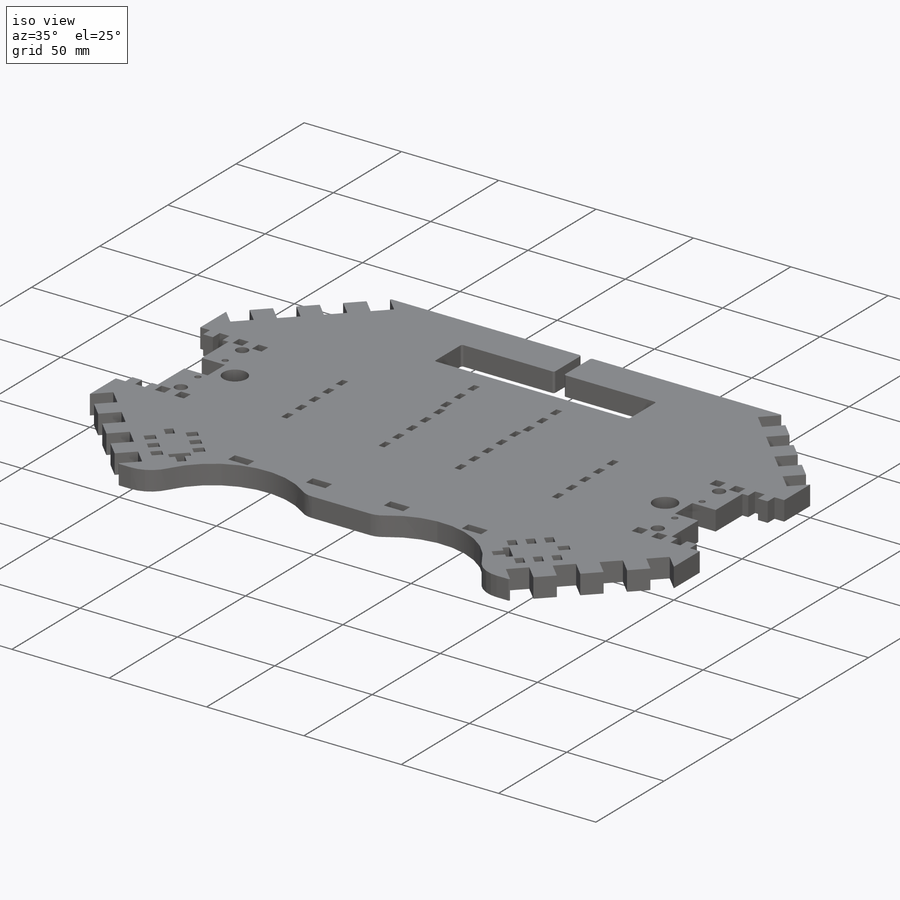
[diagram: iso view]
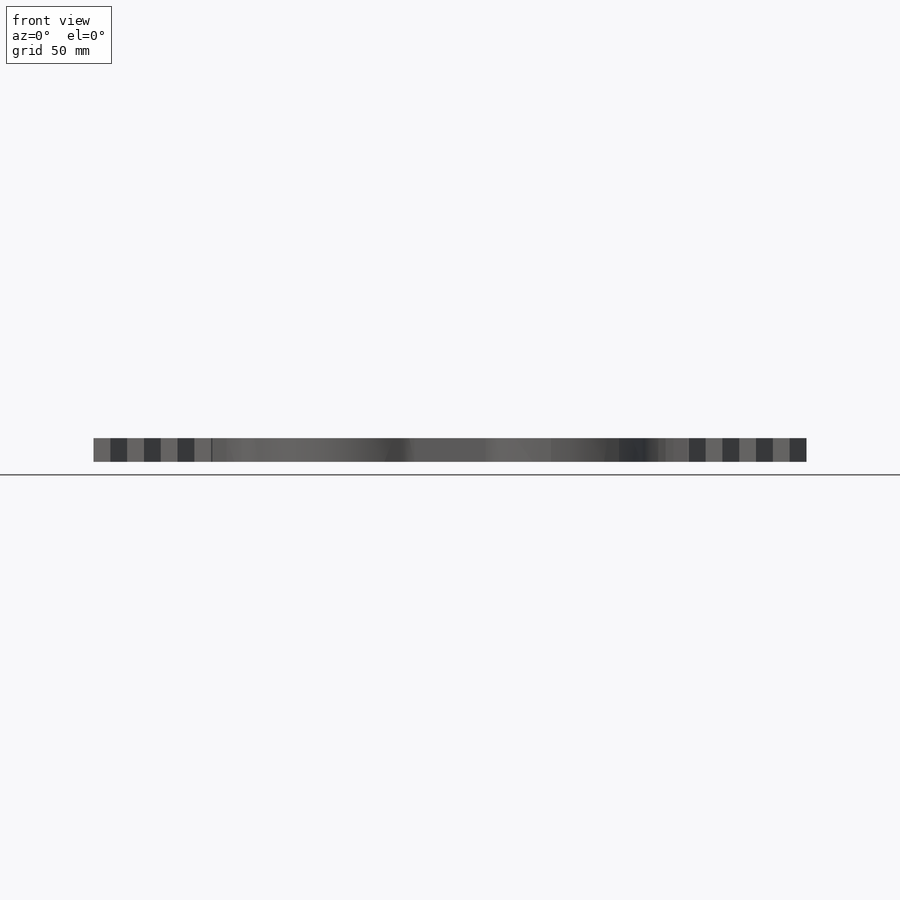
[diagram: front view]
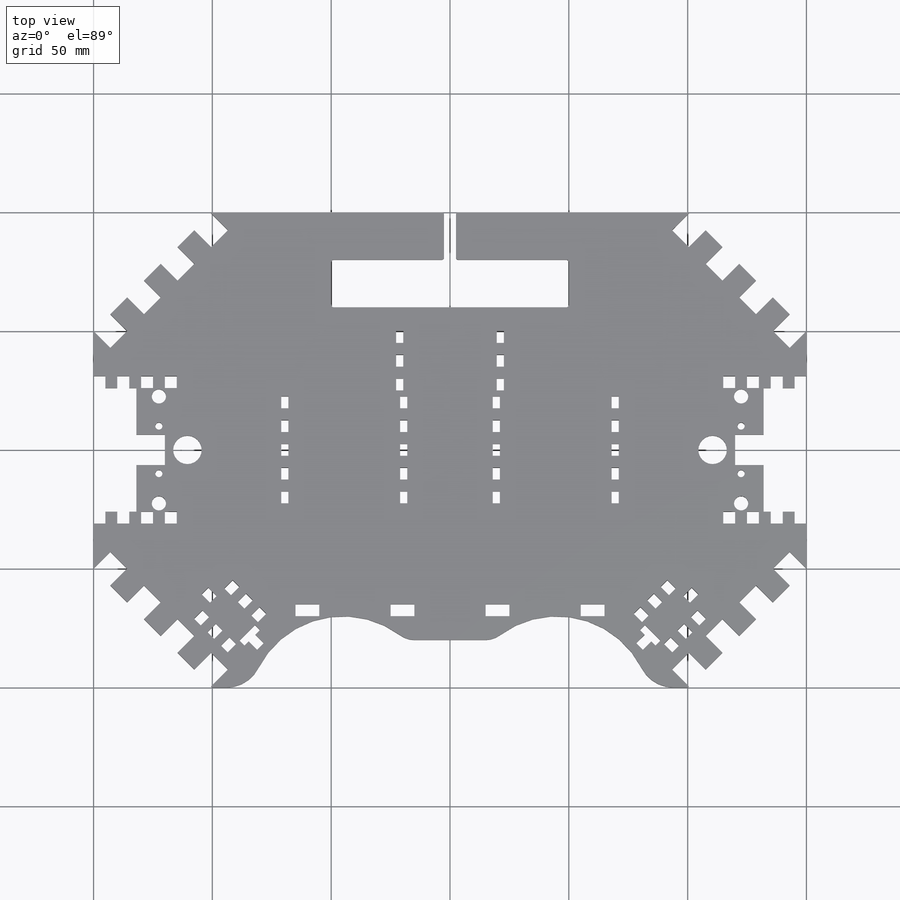
[diagram: top view]
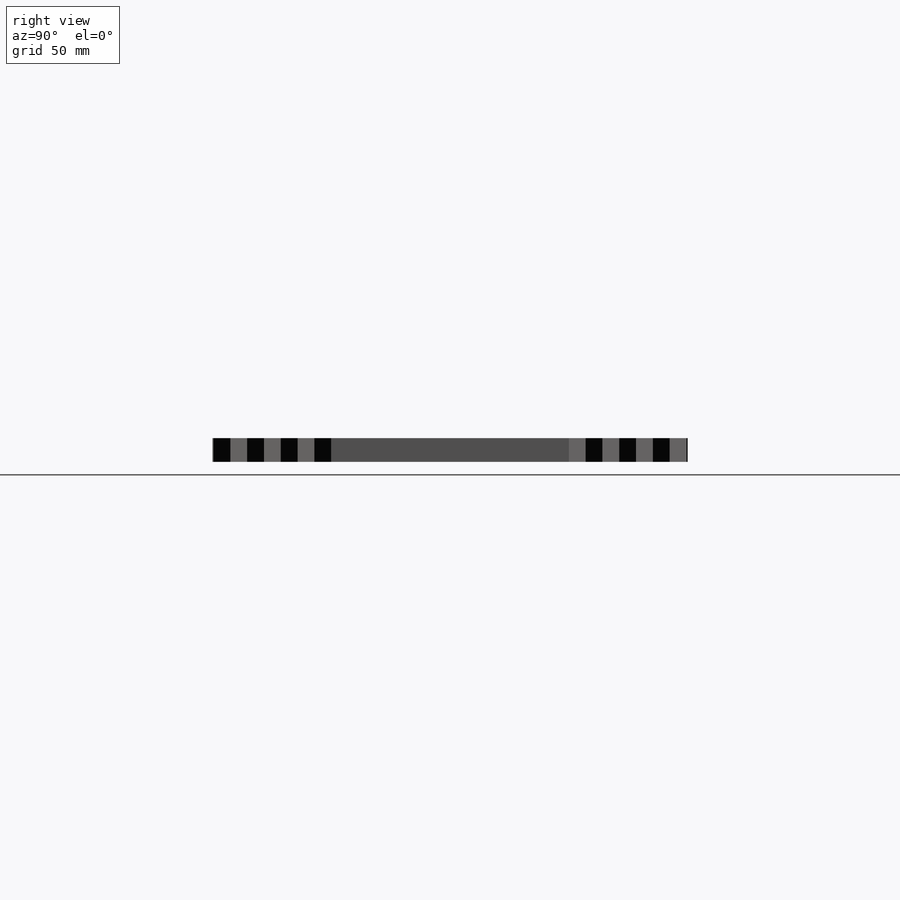
[diagram: right view]
SOLIDWORKS PART (.sldprt)
format: sldprt  version: not decoded by parser v0  size: 1,295,872 bytes
history: native  units: mm
features: sketch x17, cut_extrude x15, plane x3, pattern_linear x3, mirror x3, fillet x3, material x1, extrude x1 (+10 scaffold rows collapsed)
feature tree (56):
  scaffold x10  (default folders/planes/origin — collapsed)
  material  "Balsa"
  plane  "Plan de face"
  plane  "Plan de dessus"
  plane  "Plan de droite"
  sketch  "Esquisse1"  dims[D1=300.0mm D2=200.0mm D3=150.0mm D4=100.0mm]
  extrude  "Boss.-Extru.1"  Depth=10mm
  sketch  "Esquisse2"  dims[D1=50.0mm D2=50.0mm D3=50.0mm D4=50.0mm D5=50.0mm D6=50.0mm D7=50.0mm D8=50.0mm]
  cut_extrude  "Enlèv. mat.-Extru.1"  Depth=10mm
  sketch  "Esquisse3"  dims[D1=65.0mm 80=80.0mm D3=80.0mm D4=10.0mm D5=10.0mm D6=90.0mm D7=45.0mm D8=10.0mm D9=110.0mm]
  sketch  "Esquisse4"  dims[D1=5.0mm D2=3.0mm D3=18.0mm D4=17.5mm]
  cut_extrude  "Enlèv. mat.-Extru.3"  Depth=10mm
  pattern_linear  "Répétition linéaire1"  Count1=5 Count2=2 Spacing1=10mm Spacing2=50mm
  sketch  "Esquisse8"  dims[c1.D1=6.0mm c1.D2=6.0mm c1.D4=8.0mm c1.D6=8.0mm c1.D5=8.0mm c2.D6=8.0mm c2.D3=45.0mm c2.D4=45.0mm c3.D3=45.0mm c3.D4=22.5mm c3.D5=125.0mm c3.D6=125.0mm c4.D5=27.5mm c4.D6=27.5mm]
  cut_extrude  "Enlèv. mat.-Extru.6"  Depth=10mm
  sketch  "Esquisse14"  dims[c1.D1=12.0mm c1.D3=3.0mm c1.D4=3.0mm c1.D5=3.0mm c1.D6=3.0mm c1.D7=3.0mm c1.D8=3.0mm c1.D9=6.0mm c2.D6=6.0mm c2.D5=3.0mm c3.D6=3.0mm c3.D2=12.0mm c3.D5=30.0mm c4.D6=60.0mm c4.D7=0.0mm c4.D8=~7.528644mm c4.D9=~0.656116mm c5.D6=~0.656116mm c5.D5=63.0mm c6.D6=60.0mm c6.D8=67.5mm c6.D5=20.0mm c7.D6=10.0mm]
  cut_extrude  "Enlèv. mat.-Extru.13"  Depth=10mm
  mirror  "Symétrie1"
  cut_extrude  "Enlèv. mat.-Extru.7"  Depth=10mm
  fillet  "Congé1"  Radius=15mm
  sketch  "Esquisse12"  dims[D1=10.0mm D2=10.0mm D3=0.0mm]
  cut_extrude  "Enlèv. mat.-Extru.11"  Depth=10mm
  pattern_linear  "Répétition linéaire2"  Count1=4 Count2=1 Spacing1=20mm Spacing2=10mm
  mirror  "Symétrie2"
  mirror  "Symétrie3"
  sketch  "Esquisse17"  dims[D1=10.0mm D2=5.0mm D3=35.0mm D4=65.0mm]
  cut_extrude  "Enlèv. mat.-Extru.16"  Depth=10mm
  pattern_linear  "Répétition linéaire3"  Count1=4 Count2=1 Spacing1=40mm Spacing2=10mm
  sketch  "Esquisse21"  dims[D1=10.0mm D2=20.0mm D3=20.0mm]
  cut_extrude  "Enlèv. mat.-Extru.20"  Depth=10mm
  fillet  "Congé2"  Radius=10mm
  sketch  "Esquisse22"  dims[c1.D1=50.0mm c1.D2=35.0mm c1.D3=20.0mm c1.D4=5.0mm c1.D5=5.0mm c1.D6=5.0mm c1.D7=5.0mm c1.D8=5.0mm c1.D9=5.0mm c1.D10=5.0mm c1.D11=5.0mm c1.D12=5.0mm c1.D13=5.0mm c1.D14=5.0mm c2.D3=15.0mm c2.D4=10.0mm c2.D15=5.0mm c2.D1=35.0mm c2.D2=52.0mm c3.D3=24.0mm c3.D4=35.0mm c4.D4=90.0deg c5.D4=5.0mm c5.D5=5.0mm c5.D6=5.0]
  cut_extrude  "Enlèv. mat.-Extru.21"  Depth=10mm
  sketch  "Esquisse23"  dims[D1=20.0mm D2=100.0mm D3=50.0mm D4=20.0mm]
  cut_extrude  "Enlèv. mat.-Extru.22"  Depth=10mm
  sketch  "Esquisse24"  dims[D1=97.5mm D2=97.5mm D3=5.0mm]
  cut_extrude  "Enlèv. mat.-Extru.23"  Depth=10mm
  fillet  "Congé3"  Radius=1mm
  sketch  "Esquisse26"  dims[D1=19.67mm D2=5.0mm D3=3.0mm D4=10.0mm D5=3.0]
  cut_extrude  "Enlèv. mat.-Extru.25"  Depth=10mm
  sketch  "Esquisse28"  dims[c1.D1=29.5mm c1.D2=13.0mm c1.D3=10.0mm c1.D4=22.0mm c1.D5=29.5mm c2.D1=29.5mm c2.D2=13.0mm c2.D3=10.0mm c2.D4=13.0mm]
  sketch  "Esquisse29"  dims[c1.D1=0.0mm c1.D2=5.0mm c1.D3=4.0mm c1.D4=4.5mm c1.D5=3.5mm c2.D4=4.5mm c2.D5=5.0mm c2.D6=4.0mm c2.D8=14.75mm c2.D9=0.0mm c2.D10=3.0mm c2.D11=5.0mm c2.D12=5.0mm c2.D13=~3.535534mm c3.D11=0.0mm c3.D13=4.0mm c3.D14=4.0mm c3.D15=5.0mm c3.D16=5.0mm c3.D9=4.0mm c3.D17=4.0mm c3.D18=4.0mm c3.D19=4.0mm c3.D20=4.0mm c3.D21=4.0mm c3.D22=5.0mm c3.D23=4.0mm c3.D24=4.0mm c3.D25=4.0mm c3.D26=4.0mm c3.D27=3.0mm c3.D3=3.0mm c3.D4=~9.287022mm c3.D5=~6.566916mm c4.D5=270.0deg]
  cut_extrude  "Enlèv. mat.-Extru.26"  Depth=10mm
  sketch  "Esquisse30"  dims[D1=52.0mm D2=0.0mm D3=18.0mm]
  cut_extrude  "Enlèv. mat.-Extru.27"  Depth=10mm
  sketch  "Esquisse32"  dims[c1.D1=12.8mm c1.D2=12.0mm c1.D3=18.6mm c1.D4=18.6mm c2.D3=19.6mm]
  cut_extrude  "Enlèv. mat.-Extru.28"  Depth=10mm
decode coverage: 39 of 42 modeling features carry decoded parameters
note: ~ marks probable driven/reference dimensions
note: suppression state not decoded; provenance and decode notes live in map.json
